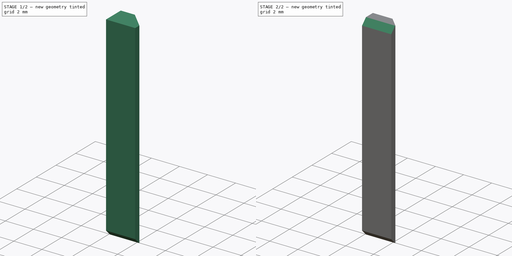
[diagram: build sequence overview — one tinted view per stage of 2, left to right]
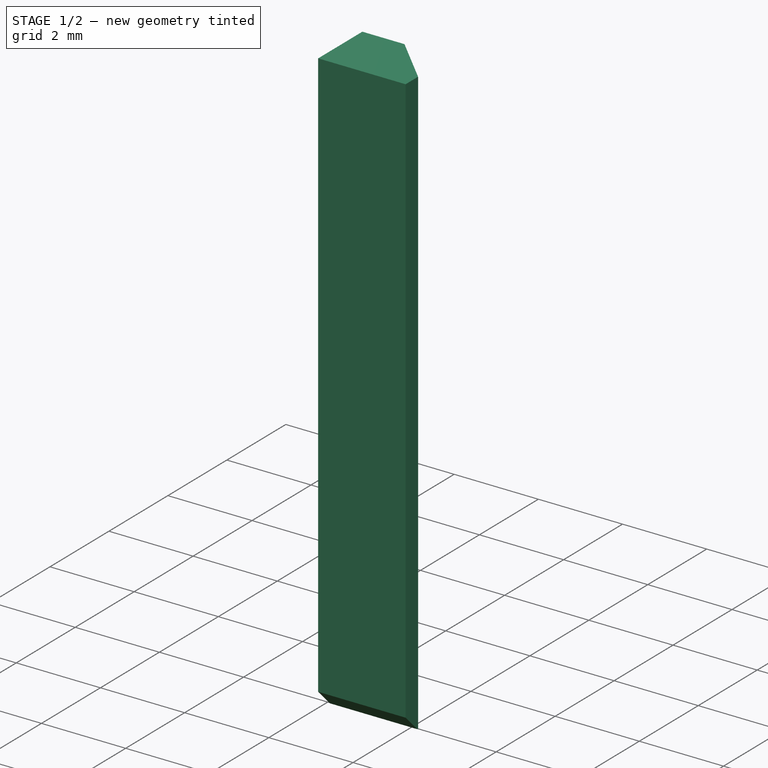
[diagram: stage 1 of 2 — iso view after this stage's code; geometry added in this stage tinted green]
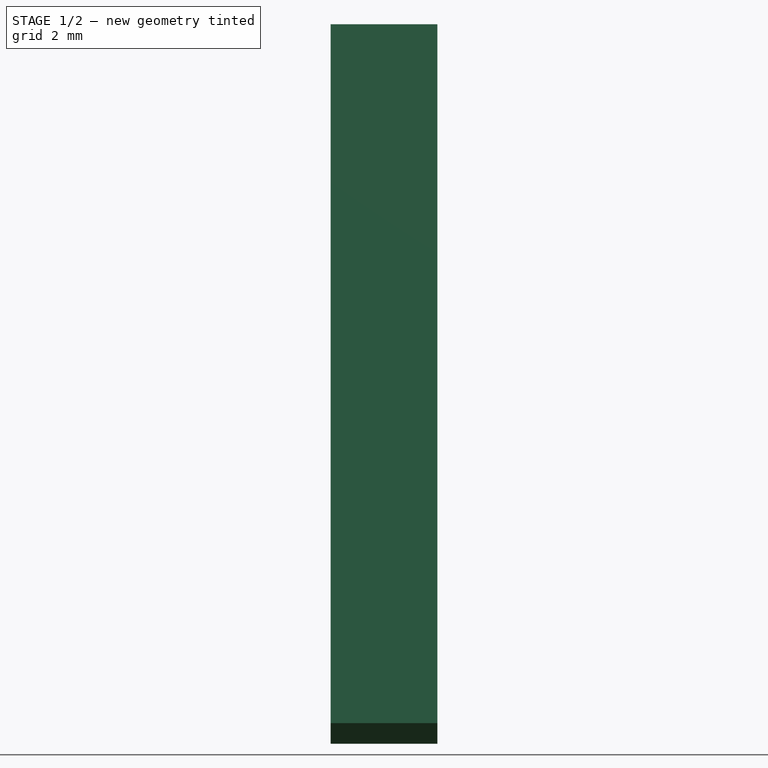
[diagram: stage 1 of 2 — front view after this stage's code; geometry added in this stage tinted green]
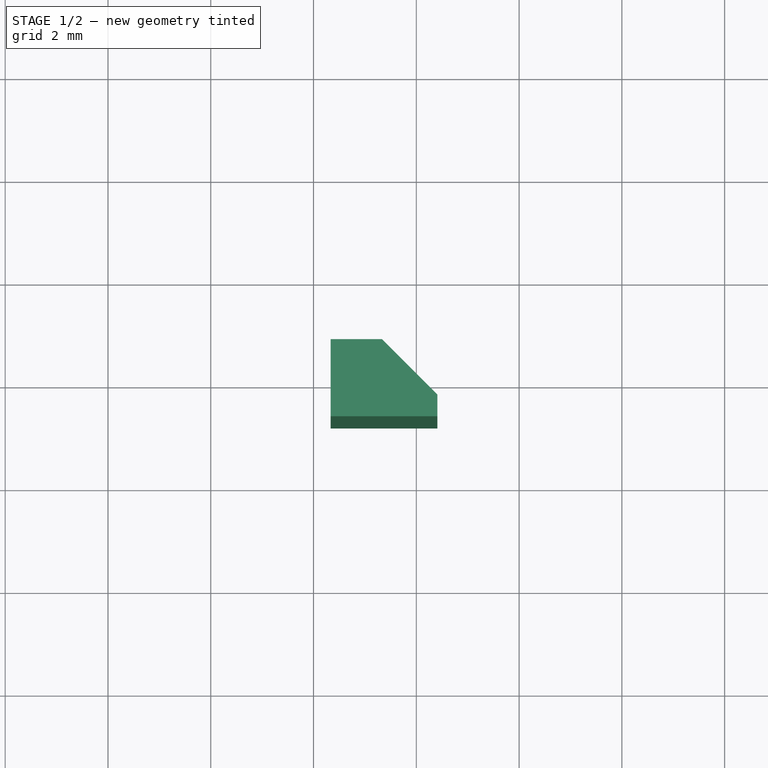
[diagram: stage 1 of 2 — top view after this stage's code; geometry added in this stage tinted green]
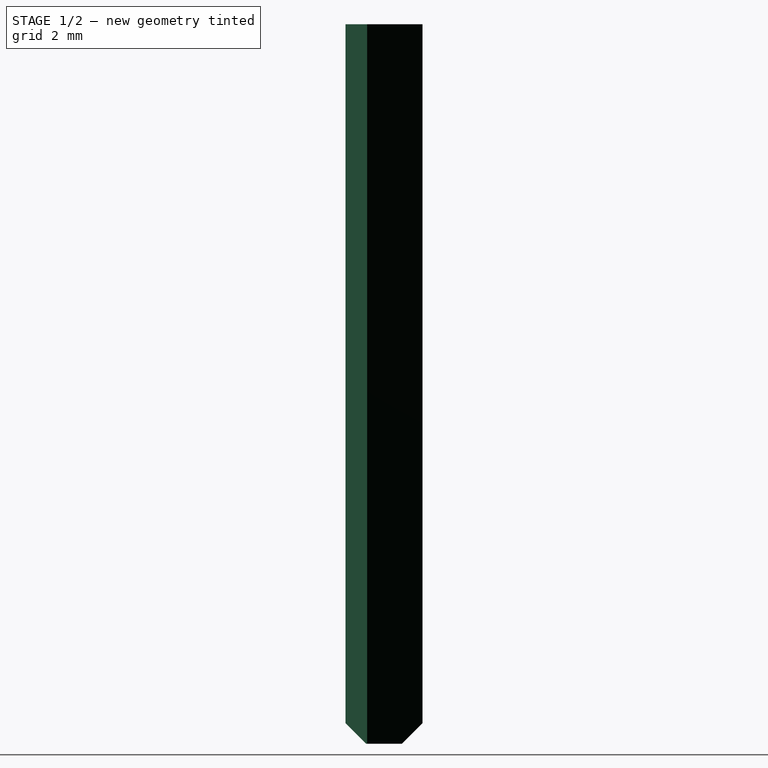
[diagram: stage 1 of 2 — right view after this stage's code; geometry added in this stage tinted green]
FCSTD DOCUMENT  (FreeCAD 0.20R28936 (Git))
Label: bracket
License: All rights reserved
LicenseURL: http://en.wikipedia.org/wiki/All_rights_reserved
objects: PartDesign::Chamfer×2, Part::Feature×1, PartDesign::ShapeBinder×1, PartDesign::Plane×1, Sketcher::SketchObject×1, PartDesign::Pad×1, PartDesign::Body×1
note: 11 computed .brp shape members not serialized (recipe doc carries the construction recipe); baked Part::Feature solids carry a one-line shape summary decoded from their .brp

FEATURE [Part::Feature] Part__Feature  label="lrs_200_psu_bracket_x2001 (Solid)001"
  shape: bbox 65 x 19.6 x 14 mm, 2282 faces (baked)
FEATURE [PartDesign::ShapeBinder] CopyPart__Feature
  TraceSupport = false
FEATURE [PartDesign::Plane] DatumPlane
  Length = 216.724
  MapMode = 5
  Placement = pos=(0,0,14) rot=(0,0,1;0rad)
  ResizeMode = 0
  Support = -> [CopyPart__Feature]
  Width = 182.524
FEATURE [Sketcher::SketchObject] Sketch
  FullyConstrained = false
  MapMode = 5
  Placement = pos=(0,0,14) rot=(0,0,1;0rad)
  Support = -> [DatumPlane]
  sketch-geometry (5):
    g0: LineSegment StartX=108.332 StartY=108.7 StartZ=0 EndX=108.332 EndY=107.2 EndZ=0
    g1: LineSegment StartX=108.332 StartY=108.7 StartZ=0 EndX=109.332 EndY=108.7 EndZ=0
    g2: LineSegment StartX=109.332 StartY=108.7 StartZ=0 EndX=110.41 EndY=107.622 EndZ=0
    g3: LineSegment StartX=110.41 StartY=107.622 StartZ=0 EndX=110.41 EndY=107.2 EndZ=0
    g4: LineSegment StartX=110.41 StartY=107.2 StartZ=0 EndX=108.332 EndY=107.2 EndZ=0
  constraints (11):
    c: Vertical(g0)
    c: Coincident(g1,g0)
    c: Horizontal(g1)
    c: Coincident(g2,g1)
    c: Vertical(g3)
    c: Coincident(g4,g0)
    c: Horizontal(g4)
    c: DistanceX(g1,g1) = 1
    c: Angle(g1,g2) = 2.35619
    c: Coincident(g3,g2)
    c: Coincident(g4,g3)
FEATURE [PartDesign::Pad] Pad
  Direction = (0,0,1)
  Length = 14
  Length2 = 10
  Placement = pos=(0,0,14) rot=(0,0,1;0rad)
  Profile = -> Sketch
  ReferenceAxis = -> Sketch [N_Axis]
  Reversed = true
  Type = 0
FEATURE [PartDesign::Chamfer] Chamfer
  Angle = 45
  Base = -> Pad [Edge7,Edge15]
  BaseFeature = -> Pad
  ChamferType = 0
  FlipDirection = false
  Placement = pos=(0,0,14) rot=(0,0,1;0rad)
  Size = 0.4
  Size2 = 1
  SupportTransform = false
  UseAllEdges = false
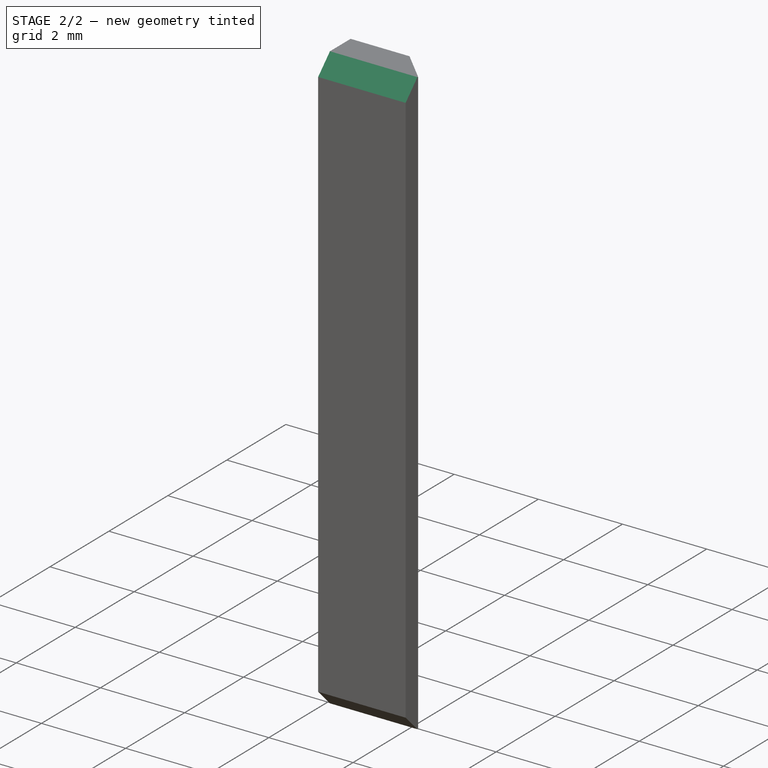
[diagram: stage 2 of 2 — iso view after this stage's code; geometry added in this stage tinted green]
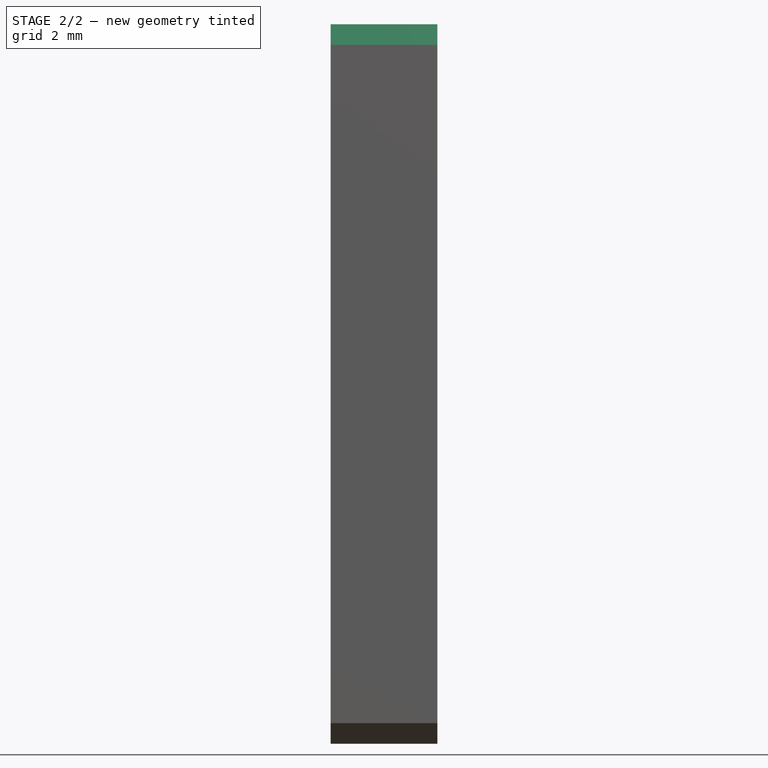
[diagram: stage 2 of 2 — front view after this stage's code; geometry added in this stage tinted green]
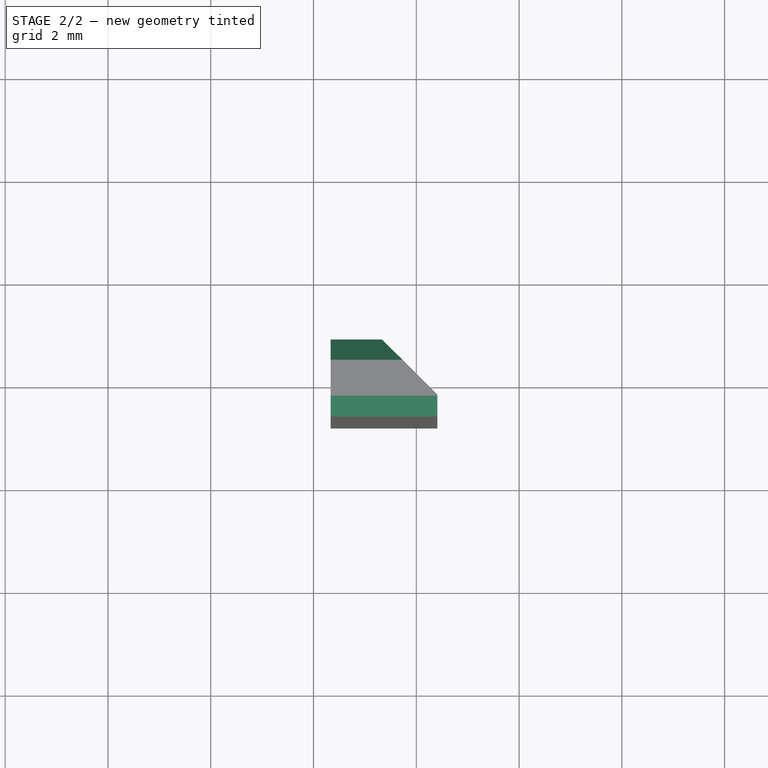
[diagram: stage 2 of 2 — top view after this stage's code; geometry added in this stage tinted green]
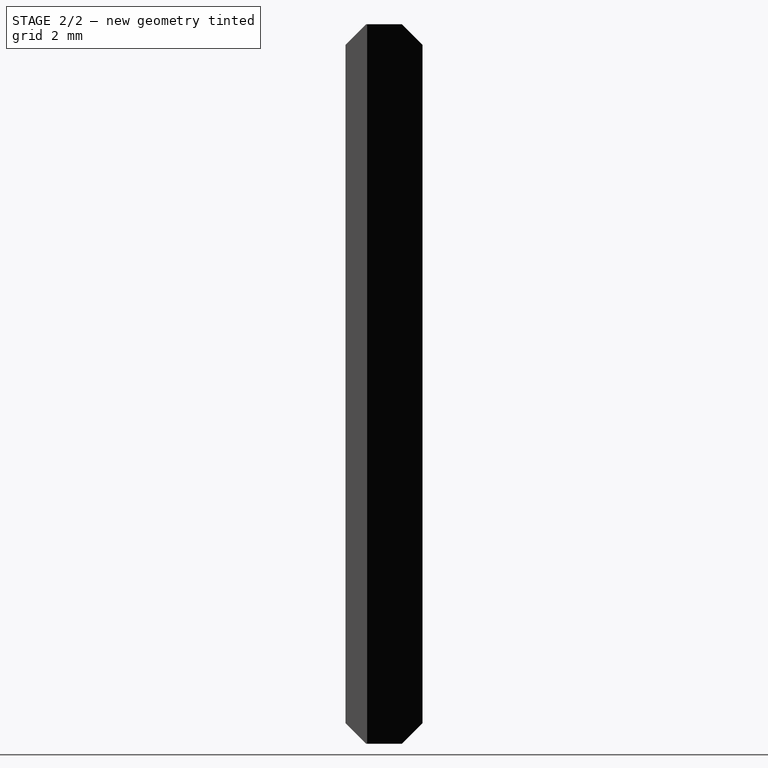
[diagram: stage 2 of 2 — right view after this stage's code; geometry added in this stage tinted green]
FEATURE [PartDesign::Chamfer] Chamfer001
  Angle = 45
  Base = -> Chamfer [Edge12,Edge8]
  BaseFeature = -> Chamfer
  ChamferType = 0
  FlipDirection = false
  Placement = pos=(0,0,14) rot=(0,0,1;0rad)
  Size = 0.4
  Size2 = 1
  SupportTransform = false
  UseAllEdges = false
FEATURE [PartDesign::Body] Body
  Group = -> [DatumPlane,CopyPart__Feature,Sketch,Pad,Chamfer,Chamfer001]
  Origin = -> Origin
  Tip = -> Chamfer001
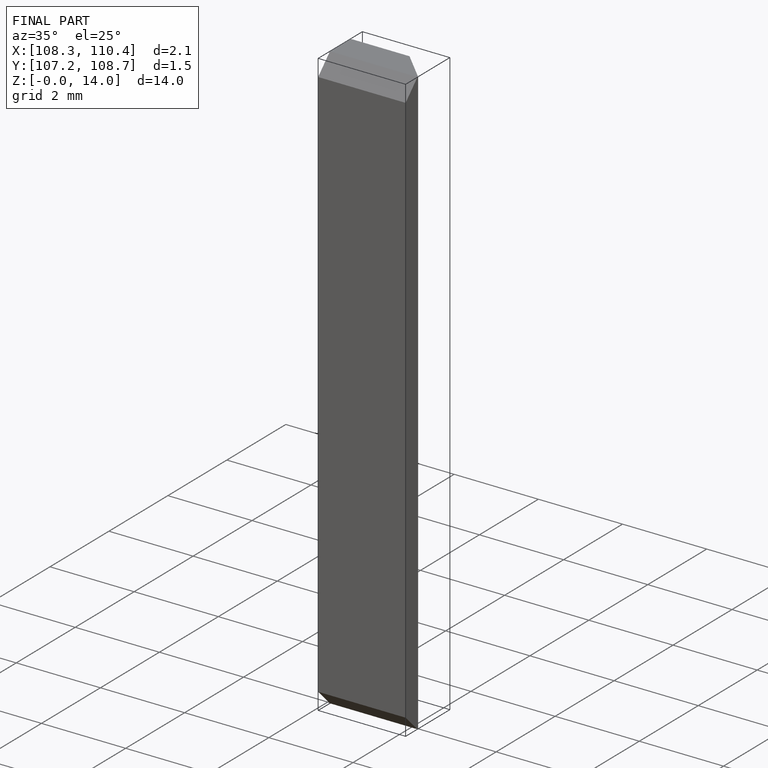
[diagram: finished part — iso view with bounding-box wireframe]
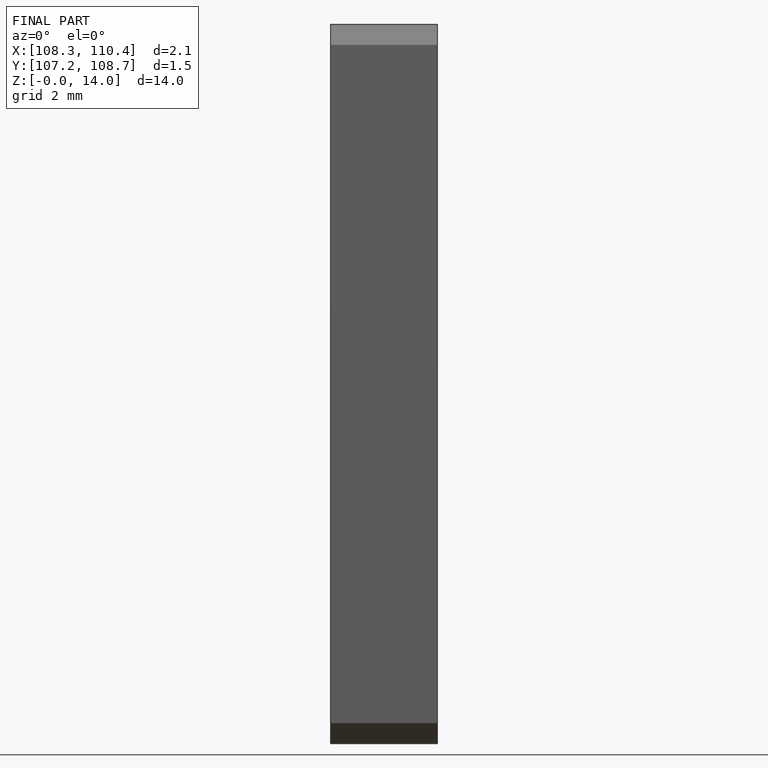
[diagram: finished part — front view with bounding-box wireframe]
